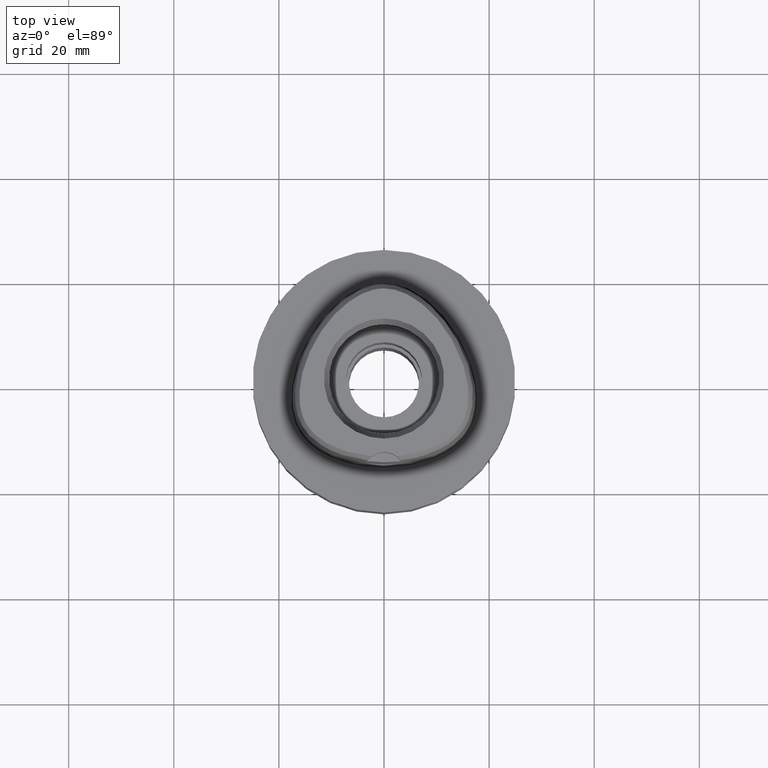
[diagram: clean part render]
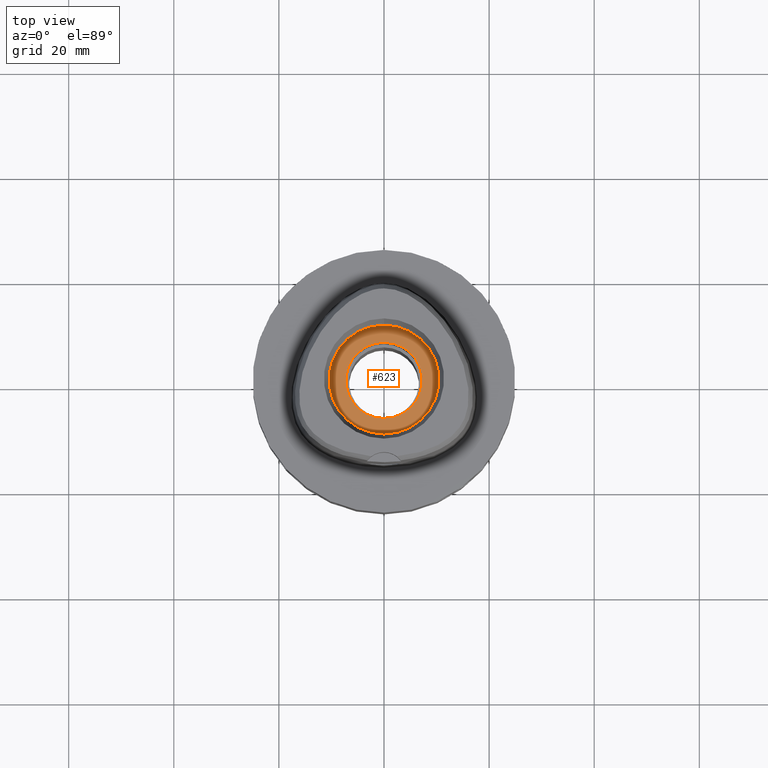
[diagram: same view with one face highlighted and labeled with its STEP entity id]
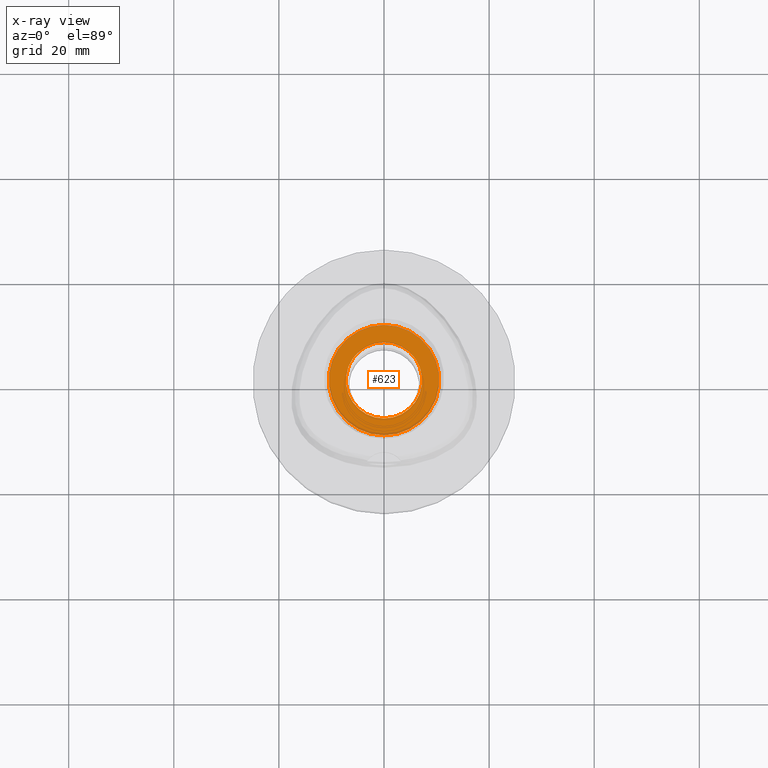
[diagram: x-ray of the same camera — body ghosted, the highlighted face saturated]
A machine part, top view. The second image highlights one B-rep face of the part: STEP entity #623.
The next image is the same camera in x-ray: the body ghosted, the highlighted face saturated — about 2% of this face is hidden behind the body in this view.
In plain terms, the highlighted planar face has unit normal (0, 0, -1).
Its self-contained STEP definition (entity closure, byte-faithful):
#71 = DIRECTION ( 'NONE',  ( 0.0000000000000000000, -1.000000000000000000, 0.0000000000000000000 ) ) ;
#256 = AXIS2_PLACEMENT_3D ( 'NONE', #1865, #1158, #2661 ) ;
#314 = DIRECTION ( 'NONE',  ( 0.0000000000000000000, 0.0000000000000000000, -1.000000000000000000 ) ) ;
#408 = CARTESIAN_POINT ( 'NONE',  ( 0.0000000000000000000, 1.610410540878999754E-14, 10.00000000000000000 ) ) ;
#492 = CIRCLE ( 'NONE', #3684, 7.250000000000000000 ) ;
#512 = CARTESIAN_POINT ( 'NONE',  ( 0.0000000000000000000, 1.610410540878999754E-14, 10.00000000000000000 ) ) ;
#623 = ADVANCED_FACE ( 'NONE', ( #1753, #3348 ), #2219, .F. ) ;
#876 = CARTESIAN_POINT ( 'NONE',  ( 0.0000000000000000000, 1.610410540878999754E-14, 10.00000000000000000 ) ) ;
#1065 = AXIS2_PLACEMENT_3D ( 'NONE', #876, #3093, #4594 ) ;
#1113 = CARTESIAN_POINT ( 'NONE',  ( 0.0000000000000000000, 10.50000000000000000, 10.00000000000000000 ) ) ;
#1158 = DIRECTION ( 'NONE',  ( 0.0000000000000000000, 0.0000000000000000000, -1.000000000000000000 ) ) ;
#1363 = VERTEX_POINT ( 'NONE', #1113 ) ;
#1408 = VERTEX_POINT ( 'NONE', #3798 ) ;
#1473 = DIRECTION ( 'NONE',  ( 0.0000000000000000000, 0.0000000000000000000, 1.000000000000000000 ) ) ;
#1543 = CARTESIAN_POINT ( 'NONE',  ( 0.0000000000000000000, 7.250000000000000000, 10.00000000000000000 ) ) ;
#1571 = EDGE_LOOP ( 'NONE', ( #1813, #3894 ) ) ;
#1607 = AXIS2_PLACEMENT_3D ( 'NONE', #4397, #314, #3710 ) ;
#1683 = EDGE_CURVE ( 'NONE', #1408, #3286, #2400, .T. ) ;
#1753 = FACE_OUTER_BOUND ( 'NONE', #1571, .T. ) ;
#1813 = ORIENTED_EDGE ( 'NONE', *, *, #3214, .F. ) ;
#1854 = EDGE_LOOP ( 'NONE', ( #1951, #4041 ) ) ;
#1865 = CARTESIAN_POINT ( 'NONE',  ( 0.0000000000000000000, 1.610410540878999754E-14, 10.00000000000000000 ) ) ;
#1951 = ORIENTED_EDGE ( 'NONE', *, *, #1683, .F. ) ;
#2063 = CARTESIAN_POINT ( 'NONE',  ( 0.0000000000000000000, -10.50000000000000000, 10.00000000000000000 ) ) ;
#2209 = DIRECTION ( 'NONE',  ( 0.0000000000000000000, 1.000000000000000000, 0.0000000000000000000 ) ) ;
#2219 = PLANE ( 'NONE',  #1607 ) ;
#2367 = CIRCLE ( 'NONE', #256, 10.50000000000000000 ) ;
#2400 = CIRCLE ( 'NONE', #2545, 7.250000000000000000 ) ;
#2545 = AXIS2_PLACEMENT_3D ( 'NONE', #512, #1473, #71 ) ;
#2601 = VERTEX_POINT ( 'NONE', #2063 ) ;
#2661 = DIRECTION ( 'NONE',  ( 0.0000000000000000000, -1.000000000000000000, 0.0000000000000000000 ) ) ;
#2937 = DIRECTION ( 'NONE',  ( 0.0000000000000000000, 0.0000000000000000000, 1.000000000000000000 ) ) ;
#3093 = DIRECTION ( 'NONE',  ( 0.0000000000000000000, 0.0000000000000000000, -1.000000000000000000 ) ) ;
#3214 = EDGE_CURVE ( 'NONE', #2601, #1363, #2367, .T. ) ;
#3286 = VERTEX_POINT ( 'NONE', #1543 ) ;
#3348 = FACE_BOUND ( 'NONE', #1854, .T. ) ;
#3398 = EDGE_CURVE ( 'NONE', #3286, #1408, #492, .T. ) ;
#3684 = AXIS2_PLACEMENT_3D ( 'NONE', #408, #2937, #2209 ) ;
#3710 = DIRECTION ( 'NONE',  ( 0.0000000000000000000, -1.000000000000000000, 0.0000000000000000000 ) ) ;
#3798 = CARTESIAN_POINT ( 'NONE',  ( 0.0000000000000000000, -7.250000000000000000, 10.00000000000000000 ) ) ;
#3894 = ORIENTED_EDGE ( 'NONE', *, *, #4693, .F. ) ;
#4041 = ORIENTED_EDGE ( 'NONE', *, *, #3398, .F. ) ;
#4112 = CIRCLE ( 'NONE', #1065, 10.50000000000000000 ) ;
#4397 = CARTESIAN_POINT ( 'NONE',  ( 0.0000000000000000000, 1.347111479061999855E-14, 10.00000000000000000 ) ) ;
#4594 = DIRECTION ( 'NONE',  ( 0.0000000000000000000, 1.000000000000000000, 0.0000000000000000000 ) ) ;
#4693 = EDGE_CURVE ( 'NONE', #1363, #2601, #4112, .T. ) ;